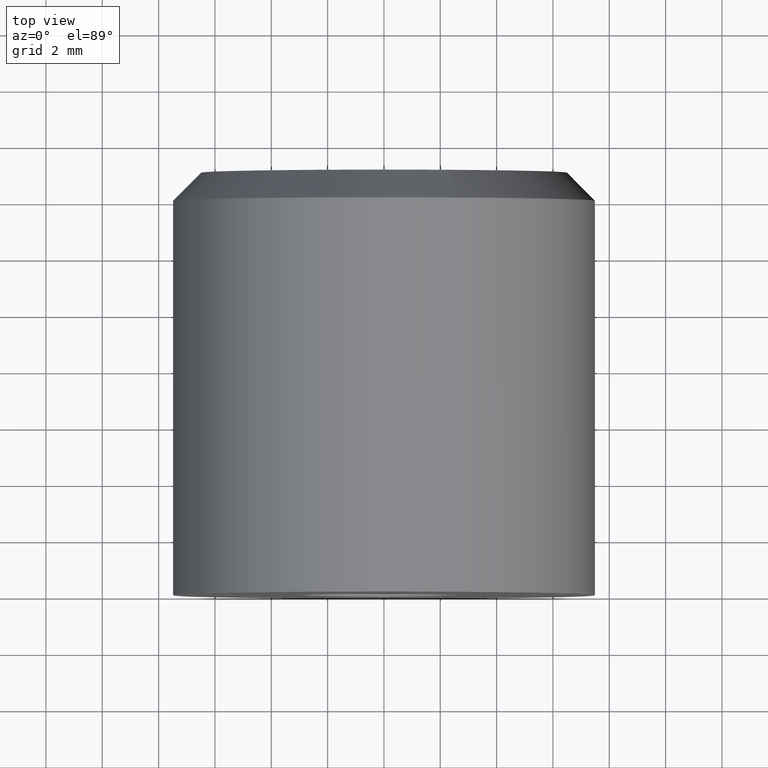
[diagram: clean part render]
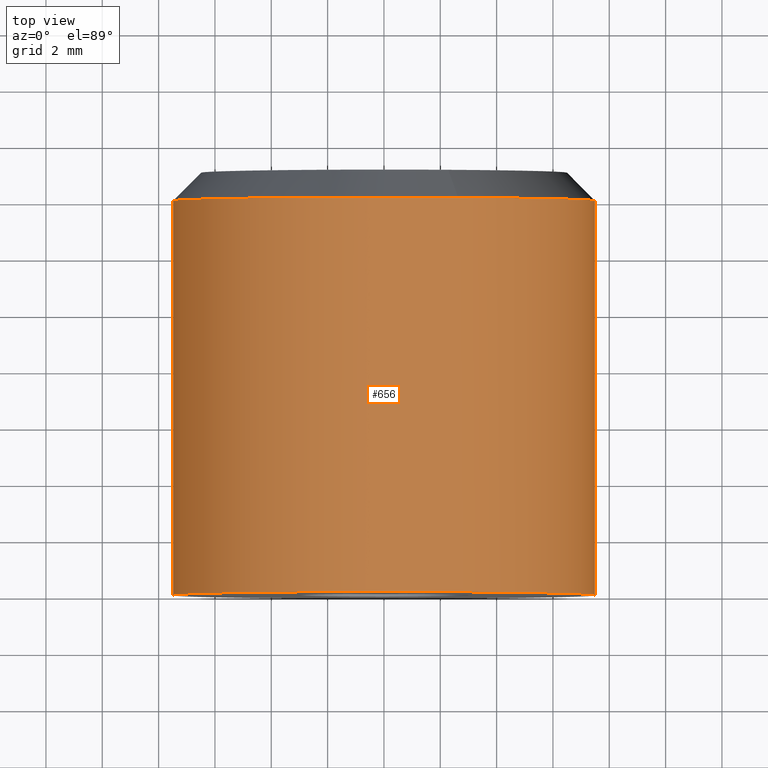
[diagram: same view with one face highlighted and labeled with its STEP entity id]
A machine part, top view. The second image highlights one B-rep face of the part: STEP entity #656.
In plain terms, the highlighted face is a freeform B-spline surface patch.
Its self-contained STEP definition (entity closure, byte-faithful):
#402=CARTESIAN_POINT('',(2.637134807944995,13.999999999999201,7.021076840822705));
#403=VERTEX_POINT('',#402);
#404=CARTESIAN_POINT('',(0.0,14.0,7.500000000000000));
#405=VERTEX_POINT('',#404);
#406=CARTESIAN_POINT('',(2.637134807944996,13.999999999999202,7.021076840822706));
#407=CARTESIAN_POINT('',(1.362055395509447,14.000000000000004,7.499999999999999));
#408=CARTESIAN_POINT('',(0.0,14.0,7.500000000000000));
#416=(BOUNDED_CURVE()B_SPLINE_CURVE(2,(#406,#407,#408),.UNSPECIFIED.,.F.,.U.)B_SPLINE_CURVE_WITH_KNOTS((3,3),(0.440284170898553,0.500000000000000),.UNSPECIFIED.)CURVE()GEOMETRIC_REPRESENTATION_ITEM()RATIONAL_B_SPLINE_CURVE((0.893499554635329,0.930038554401453,1.0))REPRESENTATION_ITEM(''));
#417=EDGE_CURVE('',#403,#405,#416,.T.);
#456=CARTESIAN_POINT('',(-7.486011067241073,14.000000001838769,0.457862723485314));
#457=VERTEX_POINT('',#456);
#463=CARTESIAN_POINT('',(0.0,14.0,7.500000000000000));
#464=CARTESIAN_POINT('',(-7.055296750921292,14.000000000000005,7.499999999999999));
#465=CARTESIAN_POINT('',(-7.486011067241073,14.000000001838764,0.457862723485314));
#473=(BOUNDED_CURVE()B_SPLINE_CURVE(2,(#463,#464,#465),.UNSPECIFIED.,.F.,.U.)B_SPLINE_CURVE_WITH_KNOTS((3,3),(0.500000000000000,0.739332992734115),.UNSPECIFIED.)CURVE()GEOMETRIC_REPRESENTATION_ITEM()RATIONAL_B_SPLINE_CURVE((1.0,0.719603957559394,0.976072107023685))REPRESENTATION_ITEM(''));
#474=EDGE_CURVE('',#405,#457,#473,.T.);
#501=CARTESIAN_POINT('',(7.447572004499123,14.0,-0.885252075839787));
#502=VERTEX_POINT('',#501);
#503=CARTESIAN_POINT('',(7.447572004499123,14.000000000000004,-0.885252075839787));
#504=CARTESIAN_POINT('',(7.500000000000000,14.0,-0.444178530586817));
#505=CARTESIAN_POINT('',(7.500000000000000,14.0,-1.836910E-016));
#506=CARTESIAN_POINT('',(7.499999999999999,13.999999999999998,5.194571967695637));
#507=CARTESIAN_POINT('',(2.637134807944996,13.999999999999195,7.021076840822705));
#515=(BOUNDED_CURVE()B_SPLINE_CURVE(2,(#503,#504,#505,#506,#507),.UNSPECIFIED.,.F.,.U.)B_SPLINE_CURVE_WITH_KNOTS((3,2,3),(0.229562579808786,0.250000000000000,0.440284170898553),.UNSPECIFIED.)CURVE()GEOMETRIC_REPRESENTATION_ITEM()RATIONAL_B_SPLINE_CURVE((0.956026962526900,0.976056072863809,1.0,0.777068226785094,0.893499554635330))REPRESENTATION_ITEM(''));
#516=EDGE_CURVE('',#502,#403,#515,.T.);
#585=CARTESIAN_POINT('',(7.447571447727496,14.350000000000001,-0.885256759925689));
#586=CARTESIAN_POINT('',(7.472907115864541,14.350000000000001,-0.672110464784833));
#587=CARTESIAN_POINT('',(7.486010988164000,14.350000000000000,-0.457864046511427));
#588=CARTESIAN_POINT('',(7.943875034675429,14.350000000000003,7.028146941652573));
#589=CARTESIAN_POINT('',(0.457864046511427,14.350000000000000,7.486010988164000));
#590=CARTESIAN_POINT('',(-7.028146941652573,14.350000000000003,7.943875034675429));
#591=CARTESIAN_POINT('',(-7.486010988164000,14.350000000000000,0.457864046511427));
#592=CARTESIAN_POINT('',(7.447571447727496,-0.358750000000002,-0.885256759925689));
#593=CARTESIAN_POINT('',(7.472907115864541,-0.358750000000002,-0.672110464784833));
#594=CARTESIAN_POINT('',(7.486010988164000,-0.358750000000002,-0.457864046511427));
#595=CARTESIAN_POINT('',(7.943875034675429,-0.358750000000002,7.028146941652573));
#596=CARTESIAN_POINT('',(0.457864046511427,-0.358750000000002,7.486010988164000));
#597=CARTESIAN_POINT('',(-7.028146941652573,-0.358750000000002,7.943875034675429));
#598=CARTESIAN_POINT('',(-7.486010988164000,-0.358750000000002,0.457864046511427));
#606=(BOUNDED_SURFACE()B_SPLINE_SURFACE(2,1,((#585,#592),(#586,#593),(#587,#594),(#588,#595),(#589,#596),(#590,#597),(#591,#598)),.UNSPECIFIED.,.F.,.F.,.U.)B_SPLINE_SURFACE_WITH_KNOTS((3,2,2,3),(2,2),(0.0,0.497056274847715,12.923463146040559,25.349870017233410),(0.0,14.708750000000000),.UNSPECIFIED.)GEOMETRIC_REPRESENTATION_ITEM()RATIONAL_B_SPLINE_SURFACE(((0.977505800795127,0.977505800795127),(0.988284271247462,0.988284271247462),(1.0,1.0),(0.707106781186548,0.707106781186548),(1.0,1.0),(0.707106781186548,0.707106781186548),(1.0,1.0)))REPRESENTATION_ITEM('')SURFACE());
#607=CARTESIAN_POINT('',(7.447572011452393,1.611096E-015,-0.885252017342033));
#608=VERTEX_POINT('',#607);
#609=CARTESIAN_POINT('',(0.0,-1.377682E-015,7.500000000000000));
#610=VERTEX_POINT('',#609);
#611=CARTESIAN_POINT('',(7.447572011452393,1.611096E-015,-0.885252017342033));
#612=CARTESIAN_POINT('',(7.500000000000000,-1.377682E-015,-0.444178501028731));
#613=CARTESIAN_POINT('',(7.500000000000000,-1.377682E-015,-1.836910E-016));
#614=CARTESIAN_POINT('',(7.500000000000000,-1.377682E-015,7.500000000000000));
#615=CARTESIAN_POINT('',(0.0,-1.377682E-015,7.500000000000000));
#623=(BOUNDED_CURVE()B_SPLINE_CURVE(2,(#611,#612,#613,#614,#615),.UNSPECIFIED.,.F.,.U.)B_SPLINE_CURVE_WITH_KNOTS((3,2,3),(0.229562581136241,0.250000000000000,0.500000000000000),.UNSPECIFIED.)CURVE()GEOMETRIC_REPRESENTATION_ITEM()RATIONAL_B_SPLINE_CURVE((0.956026965128767,0.976056074419019,1.0,0.707106781186547,1.0))REPRESENTATION_ITEM(''));
#624=EDGE_CURVE('',#608,#610,#623,.T.);
#625=ORIENTED_EDGE('',*,*,#624,.F.);
#626=CARTESIAN_POINT('',(7.447572004499123,14.0,-0.885252075839787));
#627=CARTESIAN_POINT('',(7.447572011452393,1.611096E-015,-0.885252017342033));
#628=QUASI_UNIFORM_CURVE('',1,(#626,#627),.UNSPECIFIED.,.F.,.U.);
#629=EDGE_CURVE('',#502,#608,#628,.T.);
#630=ORIENTED_EDGE('',*,*,#629,.F.);
#631=ORIENTED_EDGE('',*,*,#516,.T.);
#632=ORIENTED_EDGE('',*,*,#417,.T.);
#633=ORIENTED_EDGE('',*,*,#474,.T.);
#634=CARTESIAN_POINT('',(-7.486011152008860,8.099600E-016,0.457861367655936));
#635=VERTEX_POINT('',#634);
#636=CARTESIAN_POINT('',(-7.486011067241073,14.000000001838769,0.457862723485314));
#637=CARTESIAN_POINT('',(-7.486011152008860,8.099600E-016,0.457861367655936));
#638=QUASI_UNIFORM_CURVE('',1,(#636,#637),.UNSPECIFIED.,.F.,.U.);
#639=EDGE_CURVE('',#457,#635,#638,.T.);
#640=ORIENTED_EDGE('',*,*,#639,.T.);
#641=CARTESIAN_POINT('',(0.0,-1.377682E-015,7.500000000000000));
#642=CARTESIAN_POINT('',(-7.055298031235735,-1.377682E-015,7.499999999999999));
#643=CARTESIAN_POINT('',(-7.486011152008861,8.099600E-016,0.457861367655936));
#651=(BOUNDED_CURVE()B_SPLINE_CURVE(2,(#641,#642,#643),.UNSPECIFIED.,.F.,.U.)B_SPLINE_CURVE_WITH_KNOTS((3,3),(0.500000000000000,0.739333023987528),.UNSPECIFIED.)CURVE()GEOMETRIC_REPRESENTATION_ITEM()RATIONAL_B_SPLINE_CURVE((1.0,0.719603920943743,0.976072174005725))REPRESENTATION_ITEM(''));
#652=EDGE_CURVE('',#610,#635,#651,.T.);
#653=ORIENTED_EDGE('',*,*,#652,.F.);
#654=EDGE_LOOP('',(#625,#630,#631,#632,#633,#640,#653));
#655=FACE_OUTER_BOUND('',#654,.T.);
#656=ADVANCED_FACE('',(#655),#606,.T.);